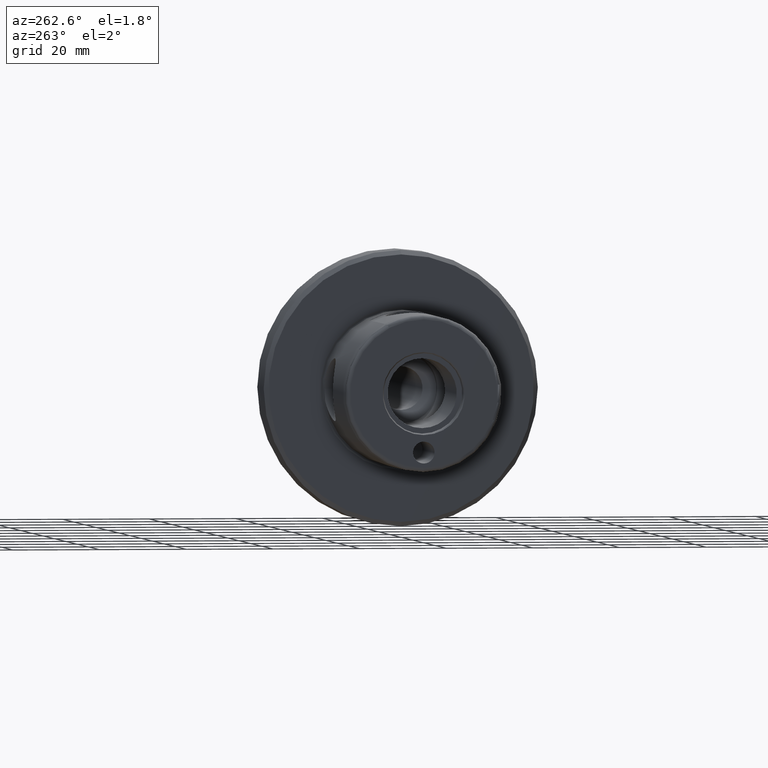
[diagram: clean part render]
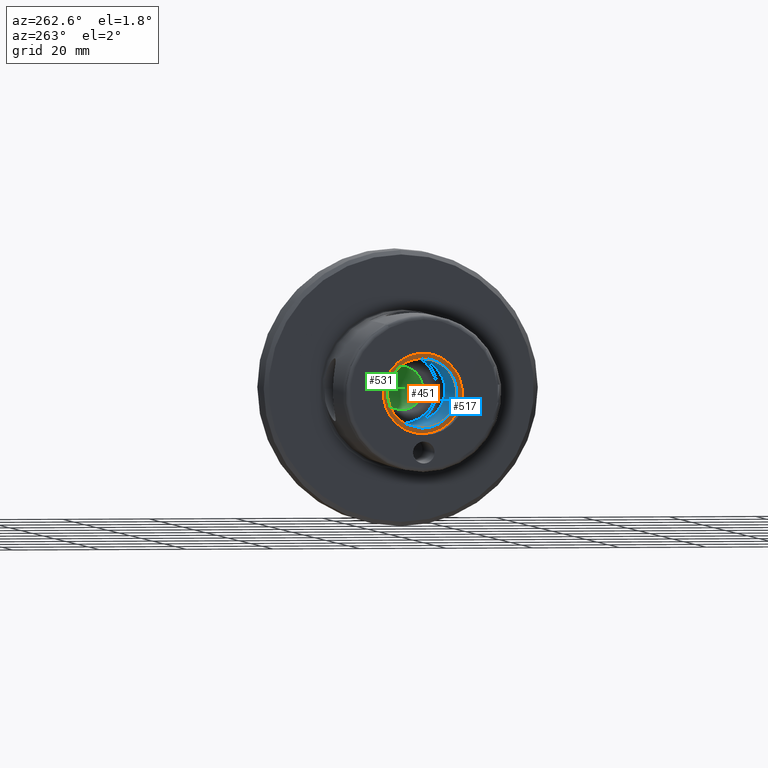
[diagram: same view with three faces highlighted in distinct colors, each labeled with its STEP entity id]
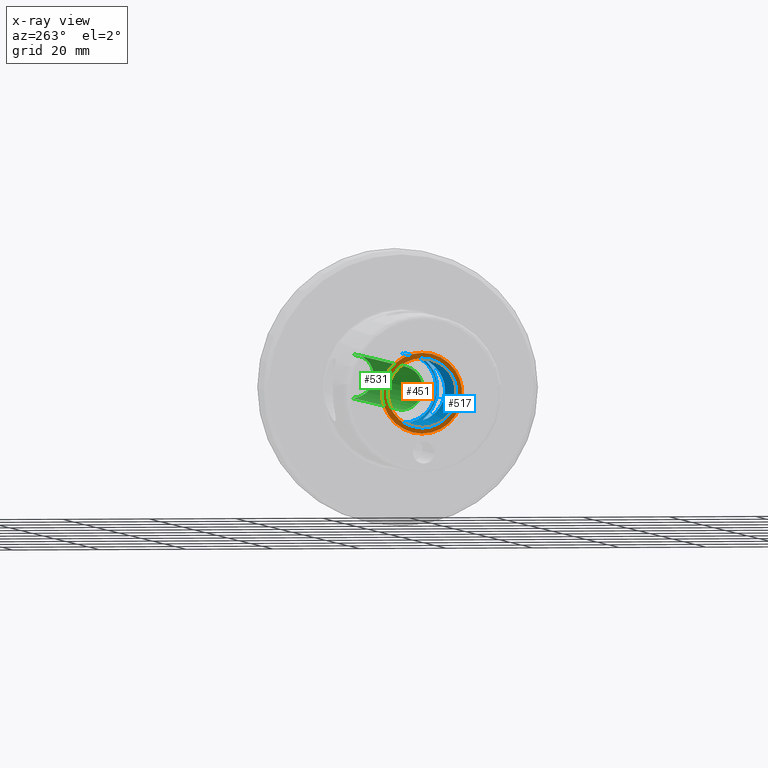
[diagram: x-ray of the same camera — body ghosted, the three highlighted faces saturated]
A machine part, auxiliary view with three faces highlighted in distinct colors.
The next image is the same camera in x-ray (body ghosted, the three faces saturated) — at least one of them is partly hidden behind the body in this view.
Their STEP definitions:

[orange] entity #451 — the highlighted planar face has unit normal (1, 0, 0).
#48 = DIRECTION ( 'NONE',  ( 0.0000000000000000000, 0.0000000000000000000, 1.000000000000000000 ) ) ;
#82 = EDGE_LOOP ( 'NONE', ( #3779, #2796 ) ) ;
#158 = DIRECTION ( 'NONE',  ( 0.0000000000000000000, 0.0000000000000000000, 1.000000000000000000 ) ) ;
#196 = AXIS2_PLACEMENT_3D ( 'NONE', #3819, #1990, #158 ) ;
#451 = ADVANCED_FACE ( 'NONE', ( #3078, #2172 ), #990, .F. ) ;
#516 = VERTEX_POINT ( 'NONE', #1377 ) ;
#686 = CIRCLE ( 'NONE', #2823, 9.250000000000000000 ) ;
#756 = ORIENTED_EDGE ( 'NONE', *, *, #770, .T. ) ;
#770 = EDGE_CURVE ( 'NONE', #809, #1975, #686, .T. ) ;
#809 = VERTEX_POINT ( 'NONE', #3906 ) ;
#856 = VERTEX_POINT ( 'NONE', #927 ) ;
#927 = CARTESIAN_POINT ( 'NONE',  ( 3.000000000000001300, 0.0000000000000000000, 8.000000000000000000 ) ) ;
#990 = PLANE ( 'NONE',  #2497 ) ;
#1149 = DIRECTION ( 'NONE',  ( -1.000000000000000000, -0.0000000000000000000, -0.0000000000000000000 ) ) ;
#1246 = DIRECTION ( 'NONE',  ( -1.000000000000000000, -0.0000000000000000000, -0.0000000000000000000 ) ) ;
#1319 = CIRCLE ( 'NONE', #2155, 9.250000000000000000 ) ;
#1344 = CARTESIAN_POINT ( 'NONE',  ( 3.000000000000001300, 9.250000000000000000, 0.0000000000000000000 ) ) ;
#1377 = CARTESIAN_POINT ( 'NONE',  ( 3.000000000000001300, 9.797174393178825700E-016, -8.000000000000000000 ) ) ;
#1659 = DIRECTION ( 'NONE',  ( 1.000000000000000000, 0.0000000000000000000, 0.0000000000000000000 ) ) ;
#1883 = DIRECTION ( 'NONE',  ( -1.000000000000000000, -0.0000000000000000000, -0.0000000000000000000 ) ) ;
#1907 = EDGE_CURVE ( 'NONE', #516, #856, #2637, .T. ) ;
#1975 = VERTEX_POINT ( 'NONE', #3882 ) ;
#1990 = DIRECTION ( 'NONE',  ( -1.000000000000000000, -0.0000000000000000000, -0.0000000000000000000 ) ) ;
#2155 = AXIS2_PLACEMENT_3D ( 'NONE', #2993, #1149, #3300 ) ;
#2172 = FACE_OUTER_BOUND ( 'NONE', #2905, .T. ) ;
#2497 = AXIS2_PLACEMENT_3D ( 'NONE', #1344, #1659, #3789 ) ;
#2637 = CIRCLE ( 'NONE', #196, 8.000000000000000000 ) ;
#2796 = ORIENTED_EDGE ( 'NONE', *, *, #1907, .F. ) ;
#2823 = AXIS2_PLACEMENT_3D ( 'NONE', #3700, #1883, #48 ) ;
#2905 = EDGE_LOOP ( 'NONE', ( #3136, #756 ) ) ;
#2993 = CARTESIAN_POINT ( 'NONE',  ( 3.000000000000001300, 0.0000000000000000000, 0.0000000000000000000 ) ) ;
#3078 = FACE_BOUND ( 'NONE', #82, .T. ) ;
#3089 = CARTESIAN_POINT ( 'NONE',  ( 3.000000000000001300, 0.0000000000000000000, 0.0000000000000000000 ) ) ;
#3136 = ORIENTED_EDGE ( 'NONE', *, *, #3163, .T. ) ;
#3163 = EDGE_CURVE ( 'NONE', #1975, #809, #1319, .T. ) ;
#3289 = EDGE_CURVE ( 'NONE', #856, #516, #3291, .T. ) ;
#3291 = CIRCLE ( 'NONE', #3582, 8.000000000000000000 ) ;
#3300 = DIRECTION ( 'NONE',  ( 0.0000000000000000000, 0.0000000000000000000, 1.000000000000000000 ) ) ;
#3392 = DIRECTION ( 'NONE',  ( 0.0000000000000000000, 0.0000000000000000000, 1.000000000000000000 ) ) ;
#3582 = AXIS2_PLACEMENT_3D ( 'NONE', #3089, #1246, #3392 ) ;
#3700 = CARTESIAN_POINT ( 'NONE',  ( 3.000000000000001300, 0.0000000000000000000, 0.0000000000000000000 ) ) ;
#3779 = ORIENTED_EDGE ( 'NONE', *, *, #3289, .F. ) ;
#3789 = DIRECTION ( 'NONE',  ( 0.0000000000000000000, 0.0000000000000000000, -1.000000000000000000 ) ) ;
#3819 = CARTESIAN_POINT ( 'NONE',  ( 3.000000000000001300, 0.0000000000000000000, 0.0000000000000000000 ) ) ;
#3882 = CARTESIAN_POINT ( 'NONE',  ( 3.000000000000001300, 0.0000000000000000000, 9.250000000000000000 ) ) ;
#3906 = CARTESIAN_POINT ( 'NONE',  ( 3.000000000000001300, 1.132798289211301700E-015, -9.250000000000000000 ) ) ;

[blue] entity #517 — the highlighted cylindrical surface (edge-blend (fillet) strip) has radius 8 mm, axis along (-1, -0, -0).
#11 = CARTESIAN_POINT ( 'NONE',  ( 37.89753479704344800, -7.910458981541829400, 1.218010795547841200 ) ) ;
#23 = CARTESIAN_POINT ( 'NONE',  ( 34.52460634533347400, -5.230696321363135200, 6.062862008288851400 ) ) ;
#27 = EDGE_CURVE ( 'NONE', #1366, #2476, #336, .T. ) ;
#65 = CARTESIAN_POINT ( 'NONE',  ( 27.86206892968657200, -4.982573697057825200, 6.260956148259881000 ) ) ;
#78 = CARTESIAN_POINT ( 'NONE',  ( 24.10612539858986000, -7.907266498770180600, 1.238569224581665700 ) ) ;
#91 = CARTESIAN_POINT ( 'NONE',  ( 25.01295789020596100, -7.129069216778429300, -3.654907970464084800 ) ) ;
#101 = CARTESIAN_POINT ( 'NONE',  ( 30.50421876749897600, -3.897195769751124600, -6.986748009664287600 ) ) ;
#102 = CARTESIAN_POINT ( 'NONE',  ( 27.24917897418611500, -3.574311381354139200, 7.159439143324005900 ) ) ;
#104 = LINE ( 'NONE', #3105, #3174 ) ;
#114 = CARTESIAN_POINT ( 'NONE',  ( 21.74529636559760300, -3.570157879659715300, 7.161539228183126000 ) ) ;
#131 = VERTEX_POINT ( 'NONE', #3495 ) ;
#158 = DIRECTION ( 'NONE',  ( 0.0000000000000000000, 0.0000000000000000000, 1.000000000000000000 ) ) ;
#196 = AXIS2_PLACEMENT_3D ( 'NONE', #3819, #1990, #158 ) ;
#227 = CARTESIAN_POINT ( 'NONE',  ( 31.00000000000000000, -3.872983346207416100, -7.000000000000000000 ) ) ;
#255 = CYLINDRICAL_SURFACE ( 'NONE', #364, 8.000000000000000000 ) ;
#278 = CARTESIAN_POINT ( 'NONE',  ( 31.00000000000000000, -3.872983346207416100, -7.000000000000000000 ) ) ;
#291 = CARTESIAN_POINT ( 'NONE',  ( 32.21980696999854400, -4.054865476716297900, -6.896872378908234700 ) ) ;
#303 = CARTESIAN_POINT ( 'NONE',  ( 37.20044115331086900, -7.310389463004235600, -3.256820414374532700 ) ) ;
#314 = CARTESIAN_POINT ( 'NONE',  ( 37.73229132411766100, -7.766746700706385700, 1.932364216009919500 ) ) ;
#326 = CARTESIAN_POINT ( 'NONE',  ( 33.54349769101450100, -4.630570762695053400, 6.525251823769631100 ) ) ;
#336 = B_SPLINE_CURVE_WITH_KNOTS ( 'NONE', 3,
 ( #3118, #1872, #2799, #1274, #3416, #1594, #3718, #1899, #65, #2206, #371, #2514, #683, #2812, #989, #3131, #1285, #3430, #1607, #3732, #1912, #78, #2219, #384, #2528, #697, #2827, #1002, #3143, #1302, #3444, #1624, #3746, #1927, #91, #2231, #397, #2540, #708, #2839, #1011, #3159, #1316, #3455, #1636, #3761, #1940, #101, #2244, #409 ),
 .UNSPECIFIED., .F., .F.,
 ( 4, 2, 2, 2, 2, 2, 2, 2, 2, 2, 2, 2, 2, 2, 2, 2, 2, 2, 2, 2, 2, 2, 2, 2, 4 ),
 ( 4.938633129352845200E-017, 0.0007410764118145781200, 0.001482152823629106800, 0.002964305647258174600, 0.003705382059072712100, 0.004446458470887250600, 0.005928611294516330900, 0.006669687706330871900, 0.007410764118145411200, 0.008892916941774494200, 0.01037506976540357800, 0.01111614617721812100, 0.01185722258903266500, 0.01259829900084720600, 0.01333937541266174900, 0.01408045182447629000, 0.01482152823629083100, 0.01630368105991991700, 0.01778583388354900600, 0.01926798670717809100, 0.02075013953080717700, 0.02149121594262172100, 0.02223229235443626600, 0.02297336876625081000, 0.02371444517806535500 ),
 .UNSPECIFIED. ) ;
#344 = FACE_OUTER_BOUND ( 'NONE', #694, .T. ) ;
#364 = AXIS2_PLACEMENT_3D ( 'NONE', #469, #778, #2303 ) ;
#371 = CARTESIAN_POINT ( 'NONE',  ( 27.30156659040441300, -5.353767644453451900, 5.946977934507340400 ) ) ;
#374 = B_SPLINE_CURVE_WITH_KNOTS ( 'NONE', 3,
 ( #709, #2541, #2840, #1012, #3160, #1317, #3456, #1637, #3762, #1941, #102, #2245, #410, #2552, #722, #2854, #1024, #3172, #1333, #3466, #1649, #3772, #1957, #114, #2258, #425, #2565, #733, #2866, #1037, #3189, #1343, #3481, #1658, #3788, #1967 ),
 .UNSPECIFIED., .F., .F.,
 ( 4, 2, 2, 2, 2, 2, 2, 2, 2, 2, 2, 2, 2, 2, 2, 2, 2, 4 ),
 ( 3.314283500190968300E-019, 0.0008991160347494586700, 0.001798232069498917600, 0.002697348104248376400, 0.003596464138997835500, 0.004495580173747293400, 0.005394696208496752000, 0.006293812243246209800, 0.007192928277995668500, 0.008092044312745126300, 0.008991160347494585000, 0.009890276382244043600, 0.01078939241699350200, 0.01168850845174295900, 0.01258762448649241800, 0.01303718250386714700, 0.01348674052124187700, 0.01438585655599133400 ),
 .UNSPECIFIED. ) ;
#384 = CARTESIAN_POINT ( 'NONE',  ( 24.01360944944266500, -7.988084185479389800, 0.5012865904527230600 ) ) ;
#397 = CARTESIAN_POINT ( 'NONE',  ( 25.81667115909476400, -6.467625354216543200, -4.724130263467352500 ) ) ;
#409 = CARTESIAN_POINT ( 'NONE',  ( 31.00000000000000000, -3.872983346207416100, -7.000000000000000000 ) ) ;
#410 = CARTESIAN_POINT ( 'NONE',  ( 26.51507332984454000, -4.034183747653810500, 6.909623443327257400 ) ) ;
#425 = CARTESIAN_POINT ( 'NONE',  ( 21.11640287995762900, -2.980626597934100000, 7.427316607046479100 ) ) ;
#469 = CARTESIAN_POINT ( 'NONE',  ( 0.0000000000000000000, 0.0000000000000000000, 0.0000000000000000000 ) ) ;
#516 = VERTEX_POINT ( 'NONE', #1377 ) ;
#517 = ADVANCED_FACE ( 'NONE', ( #1881, #344 ), #255, .F. ) ;
#566 = VECTOR ( 'NONE', #2513, 1000.000000000000000 ) ;
#600 = CARTESIAN_POINT ( 'NONE',  ( 31.24658527877542400, -3.872983346207418800, -7.000000000000003600 ) ) ;
#613 = CARTESIAN_POINT ( 'NONE',  ( 33.34009110998414400, -4.513167217921815000, -6.611679281401897000 ) ) ;
#624 = CARTESIAN_POINT ( 'NONE',  ( 37.49349904537487500, -7.560630500432983700, -2.624662021152095000 ) ) ;
#635 = CARTESIAN_POINT ( 'NONE',  ( 37.49914641197754200, -7.565481669576090700, 2.610733071131214900 ) ) ;
#644 = CARTESIAN_POINT ( 'NONE',  ( 32.90397789961811300, -4.311558885268358800, 6.739864978118574400 ) ) ;
#662 = DIRECTION ( 'NONE',  ( -1.000000000000000000, -0.0000000000000000000, -0.0000000000000000000 ) ) ;
#683 = CARTESIAN_POINT ( 'NONE',  ( 26.44144858838581400, -5.978557785983366700, 5.329700761963416700 ) ) ;
#694 = EDGE_LOOP ( 'NONE', ( #1633, #3942, #1590, #3859, #1845, #1717 ) ) ;
#697 = CARTESIAN_POINT ( 'NONE',  ( 23.99968789552499300, -8.000273091361837200, -0.2373156378398690900 ) ) ;
#701 = VECTOR ( 'NONE', #3561, 1000.000000000000000 ) ;
#708 = CARTESIAN_POINT ( 'NONE',  ( 26.76391823788930700, -5.734155101385026900, -5.589289077951103300 ) ) ;
#709 = CARTESIAN_POINT ( 'NONE',  ( 29.00000000000000000, -3.419524811915494600E-016, 8.000000000000000000 ) ) ;
#722 = CARTESIAN_POINT ( 'NONE',  ( 25.68920537523374400, -4.350268366666201200, 6.714182377434918100 ) ) ;
#733 = CARTESIAN_POINT ( 'NONE',  ( 20.60598365136194900, -2.273873134536334600, 7.674210665358672600 ) ) ;
#748 = EDGE_CURVE ( 'NONE', #2476, #1366, #1688, .T. ) ;
#778 = DIRECTION ( 'NONE',  ( -1.000000000000000000, -0.0000000000000000000, -0.0000000000000000000 ) ) ;
#837 = CARTESIAN_POINT ( 'NONE',  ( 29.00000000000000000, -3.419524811915494600E-016, 8.000000000000000000 ) ) ;
#856 = VERTEX_POINT ( 'NONE', #927 ) ;
#902 = ORIENTED_EDGE ( 'NONE', *, *, #27, .T. ) ;
#911 = CARTESIAN_POINT ( 'NONE',  ( 34.51748596085647600, -5.225842342489484000, -6.067100569784241100 ) ) ;
#924 = CARTESIAN_POINT ( 'NONE',  ( 37.72816670773600800, -7.763170223860412600, -1.946708591556186100 ) ) ;
#927 = CARTESIAN_POINT ( 'NONE',  ( 3.000000000000001300, 0.0000000000000000000, 8.000000000000000000 ) ) ;
#934 = CARTESIAN_POINT ( 'NONE',  ( 36.98527096207327200, -7.127611959860361800, 3.657263872402693600 ) ) ;
#938 = LINE ( 'NONE', #2501, #566 ) ;
#945 = CARTESIAN_POINT ( 'NONE',  ( 32.22197258244363400, -4.055457364967491400, 6.896534306439683300 ) ) ;
#989 = CARTESIAN_POINT ( 'NONE',  ( 25.82602466653261100, -6.462424403061166200, 4.719993161877292600 ) ) ;
#1002 = CARTESIAN_POINT ( 'NONE',  ( 24.06428744784775700, -7.943799414182385600, -0.9786220645567995600 ) ) ;
#1006 = EDGE_CURVE ( 'NONE', #131, #856, #104, .T. ) ;
#1011 = CARTESIAN_POINT ( 'NONE',  ( 27.85510387008406500, -4.978281868758782200, -6.268943513910700800 ) ) ;
#1012 = CARTESIAN_POINT ( 'NONE',  ( 28.85078960479159000, -1.187270151478231300, 7.916876527829760600 ) ) ;
#1024 = CARTESIAN_POINT ( 'NONE',  ( 24.80589477916099700, -4.499916121531159200, 6.614435343204620600 ) ) ;
#1037 = CARTESIAN_POINT ( 'NONE',  ( 20.29553994318902700, -1.610677726800785500, 7.837418607253184200 ) ) ;
#1101 = EDGE_CURVE ( 'NONE', #3743, #131, #374, .T. ) ;
#1195 = AXIS2_PLACEMENT_3D ( 'NONE', #3165, #1323, #3461 ) ;
#1196 = VERTEX_POINT ( 'NONE', #2926 ) ;
#1211 = CARTESIAN_POINT ( 'NONE',  ( 35.22474145329824300, -5.730294773337266900, -5.585463241233660400 ) ) ;
#1219 = CARTESIAN_POINT ( 'NONE',  ( 37.94533967099821600, -7.952056936992425700, -0.9989638608996129800 ) ) ;
#1232 = CARTESIAN_POINT ( 'NONE',  ( 36.18895365440348400, -6.472103622738513800, 4.718209453474944600 ) ) ;
#1240 = ORIENTED_EDGE ( 'NONE', *, *, #748, .T. ) ;
#1245 = CARTESIAN_POINT ( 'NONE',  ( 31.49766794097180900, -3.897572823664293500, 6.986533793702785800 ) ) ;
#1274 = CARTESIAN_POINT ( 'NONE',  ( 30.01925713153350700, -3.988177731900008500, 6.935210667922922800 ) ) ;
#1285 = CARTESIAN_POINT ( 'NONE',  ( 25.40431538286089000, -6.804890004860984800, 4.211636175206130900 ) ) ;
#1302 = CARTESIAN_POINT ( 'NONE',  ( 24.20512300430924700, -7.821107749879471900, -1.699694806297965500 ) ) ;
#1316 = CARTESIAN_POINT ( 'NONE',  ( 28.66360101075129300, -4.519184882075789400, -6.602452310275884500 ) ) ;
#1317 = CARTESIAN_POINT ( 'NONE',  ( 28.53209091736104600, -2.019681080648118200, 7.745859967436925500 ) ) ;
#1323 = DIRECTION ( 'NONE',  ( -1.000000000000000000, -0.0000000000000000000, -0.0000000000000000000 ) ) ;
#1333 = CARTESIAN_POINT ( 'NONE',  ( 23.89826740330349600, -4.469562803757205500, 6.635364457717487100 ) ) ;
#1343 = CARTESIAN_POINT ( 'NONE',  ( 20.15597008288133200, -1.183947066242023500, 7.913231435223816700 ) ) ;
#1366 = VERTEX_POINT ( 'NONE', #2388 ) ;
#1377 = CARTESIAN_POINT ( 'NONE',  ( 3.000000000000001300, 9.797174393178825700E-016, -8.000000000000000000 ) ) ;
#1520 = LINE ( 'NONE', #2952, #701 ) ;
#1530 = CARTESIAN_POINT ( 'NONE',  ( 35.71847454003929600, -6.103671481951033200, -5.175140377973503000 ) ) ;
#1540 = CARTESIAN_POINT ( 'NONE',  ( 38.00043535509969700, -8.000380935567907400, 0.2374143082818925800 ) ) ;
#1551 = CARTESIAN_POINT ( 'NONE',  ( 35.56189041485235000, -5.983197743966743900, 5.313678933897074700 ) ) ;
#1561 = CARTESIAN_POINT ( 'NONE',  ( 30.99999999999996800, -3.872983346207531600, 7.000000000000008000 ) ) ;
#1590 = ORIENTED_EDGE ( 'NONE', *, *, #1907, .T. ) ;
#1594 = CARTESIAN_POINT ( 'NONE',  ( 29.08791100081775500, -4.297563524002333300, 6.750313967821281100 ) ) ;
#1607 = CARTESIAN_POINT ( 'NONE',  ( 24.79234700535602400, -7.316088610786458400, 3.269170524971757100 ) ) ;
#1624 = CARTESIAN_POINT ( 'NONE',  ( 24.41589072735550300, -7.638658865278714000, -2.388937611990058500 ) ) ;
#1633 = ORIENTED_EDGE ( 'NONE', *, *, #2768, .F. ) ;
#1636 = CARTESIAN_POINT ( 'NONE',  ( 29.31941200267007700, -4.216402275134136300, -6.799325192123255600 ) ) ;
#1637 = CARTESIAN_POINT ( 'NONE',  ( 28.06573051778287800, -2.760618576241257800, 7.512930682308320000 ) ) ;
#1649 = CARTESIAN_POINT ( 'NONE',  ( 23.02539351268206100, -4.261629532956779300, 6.771719664427891400 ) ) ;
#1658 = CARTESIAN_POINT ( 'NONE',  ( 20.03054333888910300, -0.6021065073805466100, 7.982707809462113800 ) ) ;
#1668 = CIRCLE ( 'NONE', #1195, 8.000000000000000000 ) ;
#1679 = CARTESIAN_POINT ( 'NONE',  ( 39.00000000000000000, 0.0000000000000000000, 8.000000000000000000 ) ) ;
#1688 = B_SPLINE_CURVE_WITH_KNOTS ( 'NONE', 3,
 ( #278, #600, #3953, #2131, #291, #2446, #613, #2742, #911, #3057, #1211, #3361, #1530, #3654, #1836, #3964, #2143, #303, #2455, #624, #2754, #924, #3068, #1219, #3371, #1540, #3666, #1847, #11, #2157, #314, #2464, #635, #2766, #934, #3074, #1232, #3377, #1551, #3675, #1859, #23, #2170, #326, #2473, #644, #2774, #945, #3086, #1245, #3390, #1561 ),
 .UNSPECIFIED., .F., .F.,
 ( 4, 2, 2, 2, 2, 2, 2, 2, 2, 2, 2, 2, 2, 2, 2, 2, 2, 2, 2, 2, 2, 2, 2, 2, 2, 4 ),
 ( 0.02371444517806535500, 0.02445537776351819000, 0.02519631034897102900, 0.02667817551987671600, 0.02816004069078240800, 0.02890097327623526000, 0.02964190586168811300, 0.03112377103259380800, 0.03186470361804665000, 0.03260563620349950200, 0.03334656878895234800, 0.03408750137440519400, 0.03556936654531088500, 0.03631029913076372400, 0.03705123171621656900, 0.03779216430166941500, 0.03853309688712225300, 0.04001496205802794500, 0.04149682722893362200, 0.04223775981438646800, 0.04297869239983931300, 0.04446055757074499100, 0.04520149015619784300, 0.04594242274165069600, 0.04668335532710354100, 0.04742428791255639400 ),
 .UNSPECIFIED. ) ;
#1717 = ORIENTED_EDGE ( 'NONE', *, *, #3665, .F. ) ;
#1836 = CARTESIAN_POINT ( 'NONE',  ( 36.46474940583733100, -6.696459006977323500, -4.397427045972276200 ) ) ;
#1845 = ORIENTED_EDGE ( 'NONE', *, *, #1101, .F. ) ;
#1847 = CARTESIAN_POINT ( 'NONE',  ( 37.93595280874889400, -7.944009374381279200, 0.9763053732221729200 ) ) ;
#1859 = CARTESIAN_POINT ( 'NONE',  ( 35.05604546306434300, -5.606767190425703300, 5.709096391447110900 ) ) ;
#1872 = CARTESIAN_POINT ( 'NONE',  ( 30.74849047048492100, -3.872983346207416600, 7.000000000000000900 ) ) ;
#1881 = FACE_BOUND ( 'NONE', #2202, .T. ) ;
#1899 = CARTESIAN_POINT ( 'NONE',  ( 28.05872134588018000, -4.860453165376529000, 6.355857183588669900 ) ) ;
#1907 = EDGE_CURVE ( 'NONE', #516, #856, #2637, .T. ) ;
#1912 = CARTESIAN_POINT ( 'NONE',  ( 24.26062250765229000, -7.772813829932154300, 1.954234886555768800 ) ) ;
#1927 = CARTESIAN_POINT ( 'NONE',  ( 24.78666038698398600, -7.320924164744732300, -3.258114922168192900 ) ) ;
#1940 = CARTESIAN_POINT ( 'NONE',  ( 30.01525750420942600, -3.988991554300622700, -6.934747940482934900 ) ) ;
#1941 = CARTESIAN_POINT ( 'NONE',  ( 27.47411475124154400, -3.389263193824730200, 7.249949148282731800 ) ) ;
#1957 = CARTESIAN_POINT ( 'NONE',  ( 22.22728163140039500, -3.894761946013658000, 6.990314784499050300 ) ) ;
#1967 = CARTESIAN_POINT ( 'NONE',  ( 20.00000000000000000, 2.429691588080716400E-024, 8.000000000000000000 ) ) ;
#1990 = DIRECTION ( 'NONE',  ( -1.000000000000000000, -0.0000000000000000000, -0.0000000000000000000 ) ) ;
#2131 = CARTESIAN_POINT ( 'NONE',  ( 31.98389862511829300, -3.988738115460893900, -6.934894096193116500 ) ) ;
#2143 = CARTESIAN_POINT ( 'NONE',  ( 36.97453033773496100, -7.119784853606724100, -3.654769069399914200 ) ) ;
#2157 = CARTESIAN_POINT ( 'NONE',  ( 37.79598356993129500, -7.822069272577862400, 1.695330024425961300 ) ) ;
#2170 = CARTESIAN_POINT ( 'NONE',  ( 34.14993018485343900, -4.981293055620335900, 6.266666362729793600 ) ) ;
#2202 = EDGE_LOOP ( 'NONE', ( #902, #1240 ) ) ;
#2206 = CARTESIAN_POINT ( 'NONE',  ( 27.48391240473006300, -5.228986634347557500, 6.056674938847249800 ) ) ;
#2219 = CARTESIAN_POINT ( 'NONE',  ( 24.06627869550307600, -7.942060636750625200, 0.9921945586677684000 ) ) ;
#2231 = CARTESIAN_POINT ( 'NONE',  ( 25.53095087276656700, -6.699959181163975200, -4.392325937463688500 ) ) ;
#2244 = CARTESIAN_POINT ( 'NONE',  ( 30.75336685524568700, -3.872983346207418800, -6.999999999999998200 ) ) ;
#2245 = CARTESIAN_POINT ( 'NONE',  ( 26.76888476604500200, -3.896902462391592900, 6.989093066803735400 ) ) ;
#2258 = CARTESIAN_POINT ( 'NONE',  ( 21.52376481089207500, -3.387460477435408000, 7.250812258735825500 ) ) ;
#2303 = DIRECTION ( 'NONE',  ( 0.0000000000000000000, 0.0000000000000000000, 1.000000000000000000 ) ) ;
#2340 = VERTEX_POINT ( 'NONE', #1679 ) ;
#2388 = CARTESIAN_POINT ( 'NONE',  ( 30.99999999999996800, -3.872983346207531600, 7.000000000000008000 ) ) ;
#2446 = CARTESIAN_POINT ( 'NONE',  ( 32.90674265711471900, -4.295542750490961100, -6.751551159515619500 ) ) ;
#2455 = CARTESIAN_POINT ( 'NONE',  ( 37.30442100711386600, -7.398873424159362800, -3.051009069574202900 ) ) ;
#2464 = CARTESIAN_POINT ( 'NONE',  ( 37.58388019086374500, -7.638460984242297700, 2.389623310996392500 ) ) ;
#2473 = CARTESIAN_POINT ( 'NONE',  ( 33.33407694553602600, -4.517999929900970100, 6.603256513101746000 ) ) ;
#2476 = VERTEX_POINT ( 'NONE', #227 ) ;
#2501 = CARTESIAN_POINT ( 'NONE',  ( 0.0000000000000000000, 9.797174393178825700E-016, -8.000000000000000000 ) ) ;
#2513 = DIRECTION ( 'NONE',  ( -1.000000000000000000, -0.0000000000000000000, -0.0000000000000000000 ) ) ;
#2514 = CARTESIAN_POINT ( 'NONE',  ( 26.77183327251172800, -5.728443688976429200, 5.594857556674822000 ) ) ;
#2528 = CARTESIAN_POINT ( 'NONE',  ( 24.00032376364296000, -7.999716706867207700, 0.2553837469404176600 ) ) ;
#2540 = CARTESIAN_POINT ( 'NONE',  ( 26.43280394708813600, -5.985195037363308000, -5.322125969331660000 ) ) ;
#2541 = CARTESIAN_POINT ( 'NONE',  ( 29.00000000000000000, -0.3044265601747736500, 8.000000000000000000 ) ) ;
#2552 = CARTESIAN_POINT ( 'NONE',  ( 25.97716209513230000, -4.260651497035313500, 6.772324819382374600 ) ) ;
#2565 = CARTESIAN_POINT ( 'NONE',  ( 20.92955919704967700, -2.754235797467947200, 7.515197505070442900 ) ) ;
#2637 = CIRCLE ( 'NONE', #196, 8.000000000000000000 ) ;
#2742 = CARTESIAN_POINT ( 'NONE',  ( 34.14292522005502000, -4.977010234343018700, -6.269956170842675600 ) ) ;
#2754 = CARTESIAN_POINT ( 'NONE',  ( 37.57860496173048400, -7.633913014964917900, -2.404133595501875700 ) ) ;
#2766 = CARTESIAN_POINT ( 'NONE',  ( 37.21564683171182300, -7.322888826826124700, 3.253468837334265700 ) ) ;
#2768 = EDGE_CURVE ( 'NONE', #1196, #2340, #1668, .T. ) ;
#2774 = CARTESIAN_POINT ( 'NONE',  ( 32.68248491468398200, -4.217140374111852300, 6.798871005101093900 ) ) ;
#2799 = CARTESIAN_POINT ( 'NONE',  ( 30.50235390092823500, -3.897609098806159400, 6.986512144310524700 ) ) ;
#2812 = CARTESIAN_POINT ( 'NONE',  ( 25.97649797195794400, -6.342417771066954500, 4.879646777212262700 ) ) ;
#2827 = CARTESIAN_POINT ( 'NONE',  ( 24.01233621329309300, -7.989198065058690900, -0.4841121308791097600 ) ) ;
#2839 = CARTESIAN_POINT ( 'NONE',  ( 27.47914927305592400, -5.228052780230489000, -6.065323672382843000 ) ) ;
#2840 = CARTESIAN_POINT ( 'NONE',  ( 28.96943622962902500, -0.6025947120853447600, 7.982695283076993500 ) ) ;
#2854 = CARTESIAN_POINT ( 'NONE',  ( 25.10437072366676900, -4.469203543683811100, 6.635608453231574400 ) ) ;
#2866 = CARTESIAN_POINT ( 'NONE',  ( 20.46733646817000400, -2.018586950015414300, 7.746157717536473100 ) ) ;
#2926 = CARTESIAN_POINT ( 'NONE',  ( 39.00000000000000000, 9.797174393178825700E-016, -8.000000000000000000 ) ) ;
#2952 = CARTESIAN_POINT ( 'NONE',  ( 0.0000000000000000000, 0.0000000000000000000, 8.000000000000000000 ) ) ;
#3057 = CARTESIAN_POINT ( 'NONE',  ( 35.05113037297469700, -5.603198860898247700, -5.712612966352321700 ) ) ;
#3068 = CARTESIAN_POINT ( 'NONE',  ( 37.79205067545959200, -7.818651992122300800, -1.710837691664588700 ) ) ;
#3074 = CARTESIAN_POINT ( 'NONE',  ( 36.47253317889356300, -6.702835456357103500, 4.387530983107526900 ) ) ;
#3086 = CARTESIAN_POINT ( 'NONE',  ( 31.98208525019000700, -3.988469878905456700, 6.935044079988341700 ) ) ;
#3105 = CARTESIAN_POINT ( 'NONE',  ( 0.0000000000000000000, 0.0000000000000000000, 8.000000000000000000 ) ) ;
#3118 = CARTESIAN_POINT ( 'NONE',  ( 30.99999999999996800, -3.872983346207531600, 7.000000000000008000 ) ) ;
#3131 = CARTESIAN_POINT ( 'NONE',  ( 25.53996794740059100, -6.693643135794161500, 4.385932761008147600 ) ) ;
#3143 = CARTESIAN_POINT ( 'NONE',  ( 24.10342318015009500, -7.909623561254243800, -1.223333147197737800 ) ) ;
#3159 = CARTESIAN_POINT ( 'NONE',  ( 28.45665332687323700, -4.630533659732755300, -6.525250478903919800 ) ) ;
#3160 = CARTESIAN_POINT ( 'NONE',  ( 28.76107964661645200, -1.476505698798509700, 7.867489385063412200 ) ) ;
#3165 = CARTESIAN_POINT ( 'NONE',  ( 39.00000000000000000, 0.0000000000000000000, 0.0000000000000000000 ) ) ;
#3172 = CARTESIAN_POINT ( 'NONE',  ( 24.19657808079527000, -4.500083538744595700, 6.614321443244977900 ) ) ;
#3174 = VECTOR ( 'NONE', #662, 1000.000000000000000 ) ;
#3189 = CARTESIAN_POINT ( 'NONE',  ( 20.24407696700816600, -1.469505261553922600, 7.865209259094309700 ) ) ;
#3361 = CARTESIAN_POINT ( 'NONE',  ( 35.55820000335406700, -5.980386702605176900, -5.316827314838429100 ) ) ;
#3371 = CARTESIAN_POINT ( 'NONE',  ( 37.99909577167555600, -7.999208800510262800, -0.5123487462078653000 ) ) ;
#3377 = CARTESIAN_POINT ( 'NONE',  ( 35.72415446489971900, -6.108056706286483000, 5.170014478738918800 ) ) ;
#3390 = CARTESIAN_POINT ( 'NONE',  ( 31.25146071713894000, -3.872983346207416600, 7.000000000000000900 ) ) ;
#3410 = EDGE_CURVE ( 'NONE', #1196, #516, #938, .T. ) ;
#3416 = CARTESIAN_POINT ( 'NONE',  ( 29.78060939856338500, -4.054646151562715200, 6.897013289270019800 ) ) ;
#3430 = CARTESIAN_POINT ( 'NONE',  ( 25.01983484782074600, -7.123323790367661200, 3.665499581207127400 ) ) ;
#3444 = CARTESIAN_POINT ( 'NONE',  ( 24.26782584751720200, -7.766645554248961900, -1.932705101340261600 ) ) ;
#3455 = CARTESIAN_POINT ( 'NONE',  ( 29.09461099737831100, -4.312166394369731000, -6.739482880393573800 ) ) ;
#3456 = CARTESIAN_POINT ( 'NONE',  ( 28.39291274294869900, -2.276110591496841800, 7.673621240062217900 ) ) ;
#3461 = DIRECTION ( 'NONE',  ( 0.0000000000000000000, 0.0000000000000000000, 1.000000000000000000 ) ) ;
#3466 = CARTESIAN_POINT ( 'NONE',  ( 23.31326709380252300, -4.350946883611102900, 6.713740712856376200 ) ) ;
#3481 = CARTESIAN_POINT ( 'NONE',  ( 20.11921223843406600, -1.039635686699289300, 7.933517296465084600 ) ) ;
#3495 = CARTESIAN_POINT ( 'NONE',  ( 20.00000000000000000, 2.429691588080716400E-024, 8.000000000000000000 ) ) ;
#3561 = DIRECTION ( 'NONE',  ( -1.000000000000000000, -0.0000000000000000000, -0.0000000000000000000 ) ) ;
#3654 = CARTESIAN_POINT ( 'NONE',  ( 36.18083118557844800, -6.465618769444687600, -4.726870835284259400 ) ) ;
#3665 = EDGE_CURVE ( 'NONE', #2340, #3743, #1520, .T. ) ;
#3666 = CARTESIAN_POINT ( 'NONE',  ( 37.98740506313430400, -7.988971967116977900, 0.4866045937506575100 ) ) ;
#3675 = CARTESIAN_POINT ( 'NONE',  ( 35.22791842899260200, -5.732635112101785800, 5.583075651238129200 ) ) ;
#3718 = CARTESIAN_POINT ( 'NONE',  ( 28.66381697130802300, -4.511018792922473400, 6.613199792375692000 ) ) ;
#3732 = CARTESIAN_POINT ( 'NONE',  ( 24.40991910940097000, -7.643256047235721200, 2.406920330758378400 ) ) ;
#3743 = VERTEX_POINT ( 'NONE', #837 ) ;
#3746 = CARTESIAN_POINT ( 'NONE',  ( 24.50182080779793400, -7.564649243936249200, -2.613215009182051900 ) ) ;
#3761 = CARTESIAN_POINT ( 'NONE',  ( 29.77909955635487500, -4.055153514021369300, -6.896709446665015600 ) ) ;
#3762 = CARTESIAN_POINT ( 'NONE',  ( 27.88080318950922300, -2.983728094912777800, 7.426051057279948100 ) ) ;
#3772 = CARTESIAN_POINT ( 'NONE',  ( 22.48491833907344500, -4.034277688559260600, 6.909578642823435100 ) ) ;
#3788 = CARTESIAN_POINT ( 'NONE',  ( 19.99999999999999300, -0.3043374259424879700, 7.999999999999996400 ) ) ;
#3819 = CARTESIAN_POINT ( 'NONE',  ( 3.000000000000001300, 0.0000000000000000000, 0.0000000000000000000 ) ) ;
#3859 = ORIENTED_EDGE ( 'NONE', *, *, #1006, .F. ) ;
#3942 = ORIENTED_EDGE ( 'NONE', *, *, #3410, .T. ) ;
#3953 = CARTESIAN_POINT ( 'NONE',  ( 31.49344800614487000, -3.896853369577715200, -6.986939365355582700 ) ) ;
#3964 = CARTESIAN_POINT ( 'NONE',  ( 36.85186988368992200, -7.017061381128080200, -3.847834655708967300 ) ) ;

[green] entity #531 — the highlighted cylindrical surface (edge-blend (fillet) strip) has radius 5 mm, axis along (1, -0, -0).
#129 = DIRECTION ( 'NONE',  ( 1.000000000000000000, -0.0000000000000000000, -0.0000000000000000000 ) ) ;
#483 = DIRECTION ( 'NONE',  ( 1.000000000000000000, -0.0000000000000000000, -0.0000000000000000000 ) ) ;
#531 = ADVANCED_FACE ( 'NONE', ( #3407 ), #2600, .F. ) ;
#587 = AXIS2_PLACEMENT_3D ( 'NONE', #2912, #483, #2319 ) ;
#618 = CARTESIAN_POINT ( 'NONE',  ( 127.3268488566558300, 0.0000000000000000000, 0.0000000000000000000 ) ) ;
#772 = DIRECTION ( 'NONE',  ( 0.0000000000000000000, 0.0000000000000000000, 1.000000000000000000 ) ) ;
#919 = DIRECTION ( 'NONE',  ( 0.0000000000000000000, 0.0000000000000000000, -1.000000000000000000 ) ) ;
#980 = ORIENTED_EDGE ( 'NONE', *, *, #1178, .T. ) ;
#996 = CIRCLE ( 'NONE', #1065, 4.999999999999986700 ) ;
#1065 = AXIS2_PLACEMENT_3D ( 'NONE', #3918, #2091, #772 ) ;
#1103 = EDGE_CURVE ( 'NONE', #2289, #2190, #2692, .T. ) ;
#1178 = EDGE_CURVE ( 'NONE', #2498, #3862, #3935, .T. ) ;
#1304 = CARTESIAN_POINT ( 'NONE',  ( 141.5000000000000300, 0.0000000000000000000, -4.999999999999986700 ) ) ;
#1629 = CARTESIAN_POINT ( 'NONE',  ( 40.73205080756890300, 7.960204194457787600E-016, -4.999999999999986700 ) ) ;
#1771 = ORIENTED_EDGE ( 'NONE', *, *, #2617, .T. ) ;
#2013 = DIRECTION ( 'NONE',  ( 1.000000000000000000, -0.0000000000000000000, -0.0000000000000000000 ) ) ;
#2091 = DIRECTION ( 'NONE',  ( 1.000000000000000000, 0.0000000000000000000, 0.0000000000000000000 ) ) ;
#2154 = CARTESIAN_POINT ( 'NONE',  ( 127.3268488566558300, 6.123233995736750500E-016, 4.999999999999986700 ) ) ;
#2175 = EDGE_LOOP ( 'NONE', ( #3010, #980, #1771, #2618 ) ) ;
#2190 = VERTEX_POINT ( 'NONE', #3091 ) ;
#2289 = VERTEX_POINT ( 'NONE', #1629 ) ;
#2319 = DIRECTION ( 'NONE',  ( 0.0000000000000000000, 0.0000000000000000000, -1.000000000000000000 ) ) ;
#2393 = CARTESIAN_POINT ( 'NONE',  ( 40.73205080756890300, 0.0000000000000000000, 4.999999999999986700 ) ) ;
#2498 = VERTEX_POINT ( 'NONE', #2393 ) ;
#2539 = EDGE_CURVE ( 'NONE', #2498, #2289, #996, .T. ) ;
#2600 = CYLINDRICAL_SURFACE ( 'NONE', #587, 4.999999999999986700 ) ;
#2606 = CARTESIAN_POINT ( 'NONE',  ( 141.5000000000000300, 6.123233995736750500E-016, 4.999999999999986700 ) ) ;
#2617 = EDGE_CURVE ( 'NONE', #3862, #2190, #2851, .T. ) ;
#2618 = ORIENTED_EDGE ( 'NONE', *, *, #1103, .F. ) ;
#2692 = LINE ( 'NONE', #1304, #3402 ) ;
#2750 = DIRECTION ( 'NONE',  ( 1.000000000000000000, -0.0000000000000000000, -0.0000000000000000000 ) ) ;
#2851 = CIRCLE ( 'NONE', #2913, 4.999999999999986700 ) ;
#2912 = CARTESIAN_POINT ( 'NONE',  ( 141.5000000000000300, 0.0000000000000000000, 0.0000000000000000000 ) ) ;
#2913 = AXIS2_PLACEMENT_3D ( 'NONE', #618, #2750, #919 ) ;
#3010 = ORIENTED_EDGE ( 'NONE', *, *, #2539, .F. ) ;
#3091 = CARTESIAN_POINT ( 'NONE',  ( 127.3268488566558300, 0.0000000000000000000, -4.999999999999986700 ) ) ;
#3123 = VECTOR ( 'NONE', #2013, 1000.000000000000000 ) ;
#3402 = VECTOR ( 'NONE', #129, 1000.000000000000000 ) ;
#3407 = FACE_OUTER_BOUND ( 'NONE', #2175, .T. ) ;
#3862 = VERTEX_POINT ( 'NONE', #2154 ) ;
#3918 = CARTESIAN_POINT ( 'NONE',  ( 40.73205080756890300, 0.0000000000000000000, 0.0000000000000000000 ) ) ;
#3935 = LINE ( 'NONE', #2606, #3123 ) ;